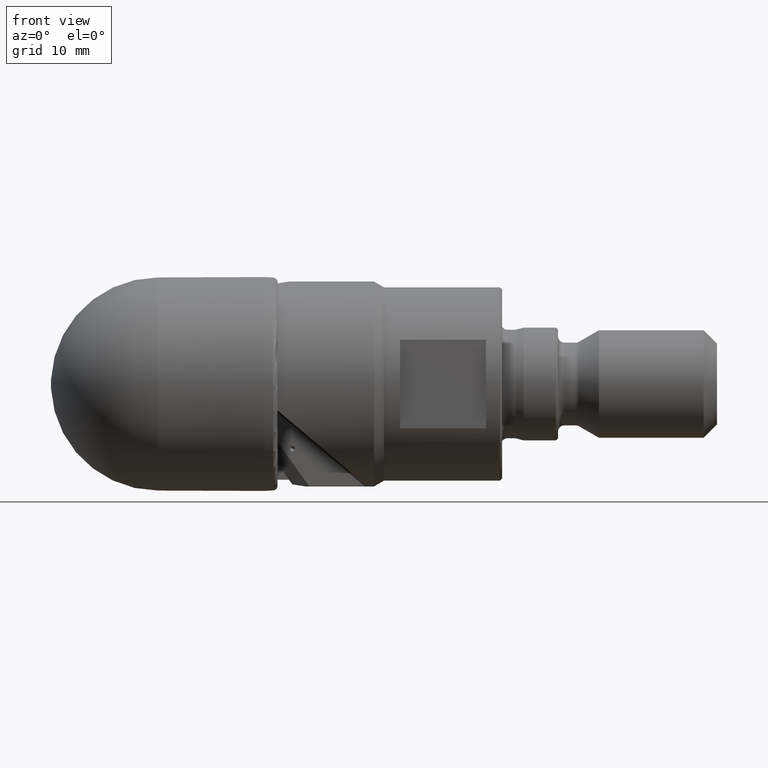
[diagram: clean part render]
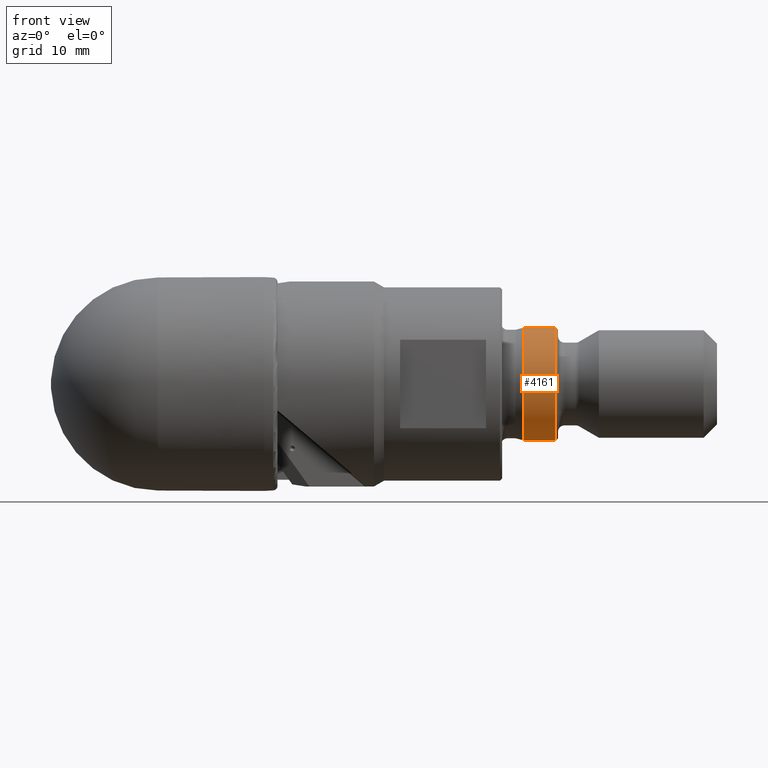
[diagram: same view with one face highlighted and labeled with its STEP entity id]
A machine part, front view. The second image highlights one B-rep face of the part: STEP entity #4161.
In plain terms, the highlighted cylindrical surface (partial cylindrical patch) has radius 5.25 mm, axis along (-1, 0, 0).
Its self-contained STEP definition (entity closure, byte-faithful):
#90 = AXIS2_PLACEMENT_3D ( 'NONE', #3915, #704, #2132 ) ;
#110 = VERTEX_POINT ( 'NONE', #1089 ) ;
#685 = VECTOR ( 'NONE', #3280, 1000.000000000000000 ) ;
#704 = DIRECTION ( 'NONE',  ( -1.000000000000000000, 0.0000000000000000000, 0.0000000000000000000 ) ) ;
#753 = CYLINDRICAL_SURFACE ( 'NONE', #3950, 5.250000000000000000 ) ;
#780 = EDGE_CURVE ( 'NONE', #110, #1351, #1536, .T. ) ;
#860 = CIRCLE ( 'NONE', #3464, 5.250000000000000000 ) ;
#1005 = CARTESIAN_POINT ( 'NONE',  ( 44.03724643000001038, 0.0000000000000000000, -5.250000000000000000 ) ) ;
#1089 = CARTESIAN_POINT ( 'NONE',  ( 47.03724643000000327, 6.429395695523604153E-16, -5.250000000000000000 ) ) ;
#1319 = ORIENTED_EDGE ( 'NONE', *, *, #780, .F. ) ;
#1323 = EDGE_CURVE ( 'NONE', #110, #1486, #860, .T. ) ;
#1351 = VERTEX_POINT ( 'NONE', #1005 ) ;
#1354 = EDGE_CURVE ( 'NONE', #1486, #3143, #3443, .T. ) ;
#1373 = DIRECTION ( 'NONE',  ( 0.0000000000000000000, 0.0000000000000000000, 1.000000000000000000 ) ) ;
#1475 = EDGE_CURVE ( 'NONE', #1351, #3143, #2100, .T. ) ;
#1483 = FACE_OUTER_BOUND ( 'NONE', #3672, .T. ) ;
#1486 = VERTEX_POINT ( 'NONE', #3250 ) ;
#1536 = LINE ( 'NONE', #4407, #685 ) ;
#1601 = CARTESIAN_POINT ( 'NONE',  ( 44.03724643000001038, 6.429395695523604153E-16, 5.250000000000000000 ) ) ;
#1748 = ORIENTED_EDGE ( 'NONE', *, *, #1323, .T. ) ;
#2100 = CIRCLE ( 'NONE', #90, 5.250000000000000000 ) ;
#2132 = DIRECTION ( 'NONE',  ( 0.0000000000000000000, 0.0000000000000000000, 1.000000000000000000 ) ) ;
#2364 = CARTESIAN_POINT ( 'NONE',  ( -4.762142644779060241, 0.0000000000000000000, 5.250000000000000000 ) ) ;
#2718 = DIRECTION ( 'NONE',  ( -1.000000000000000000, 0.0000000000000000000, 0.0000000000000000000 ) ) ;
#3143 = VERTEX_POINT ( 'NONE', #1601 ) ;
#3250 = CARTESIAN_POINT ( 'NONE',  ( 47.03724643000000327, 0.0000000000000000000, 5.250000000000000000 ) ) ;
#3280 = DIRECTION ( 'NONE',  ( -1.000000000000000000, 0.0000000000000000000, 0.0000000000000000000 ) ) ;
#3443 = LINE ( 'NONE', #2364, #3922 ) ;
#3464 = AXIS2_PLACEMENT_3D ( 'NONE', #4565, #2718, #1373 ) ;
#3630 = DIRECTION ( 'NONE',  ( 0.0000000000000000000, 0.0000000000000000000, 1.000000000000000000 ) ) ;
#3672 = EDGE_LOOP ( 'NONE', ( #1319, #1748, #4603, #3679 ) ) ;
#3679 = ORIENTED_EDGE ( 'NONE', *, *, #1475, .F. ) ;
#3794 = DIRECTION ( 'NONE',  ( -1.000000000000000000, 0.0000000000000000000, 0.0000000000000000000 ) ) ;
#3915 = CARTESIAN_POINT ( 'NONE',  ( 44.03724643000001038, 0.0000000000000000000, 0.0000000000000000000 ) ) ;
#3922 = VECTOR ( 'NONE', #3794, 1000.000000000000000 ) ;
#3950 = AXIS2_PLACEMENT_3D ( 'NONE', #3981, #4330, #3630 ) ;
#3981 = CARTESIAN_POINT ( 'NONE',  ( -4.762142644779060241, 0.0000000000000000000, 0.0000000000000000000 ) ) ;
#4161 = ADVANCED_FACE ( 'NONE', ( #1483 ), #753, .T. ) ;
#4330 = DIRECTION ( 'NONE',  ( -1.000000000000000000, 0.0000000000000000000, 0.0000000000000000000 ) ) ;
#4407 = CARTESIAN_POINT ( 'NONE',  ( -4.762142644779060241, 6.429395695523604153E-16, -5.250000000000000000 ) ) ;
#4565 = CARTESIAN_POINT ( 'NONE',  ( 47.03724643000000327, 0.0000000000000000000, 0.0000000000000000000 ) ) ;
#4603 = ORIENTED_EDGE ( 'NONE', *, *, #1354, .T. ) ;